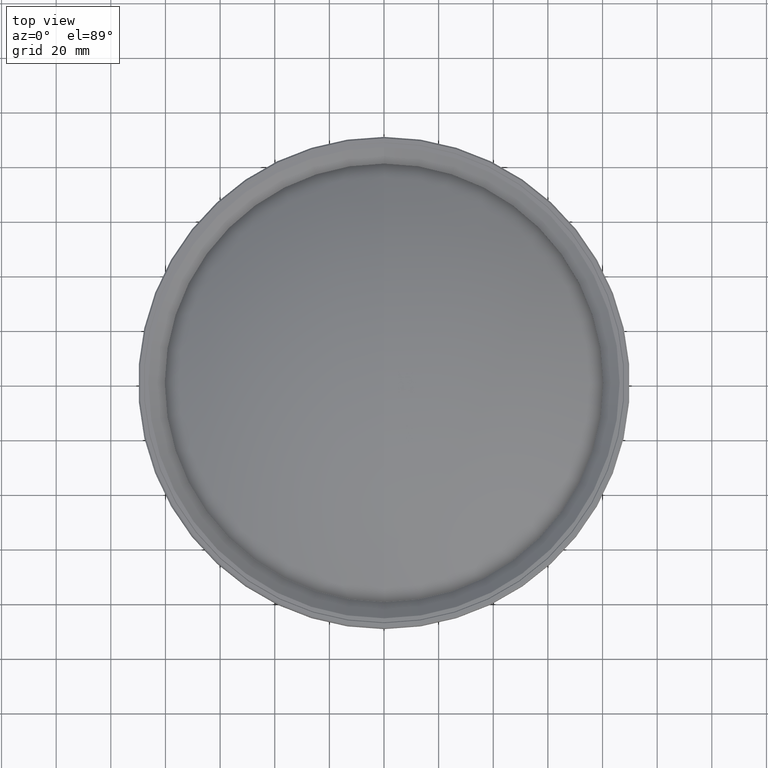
[diagram: clean part render]
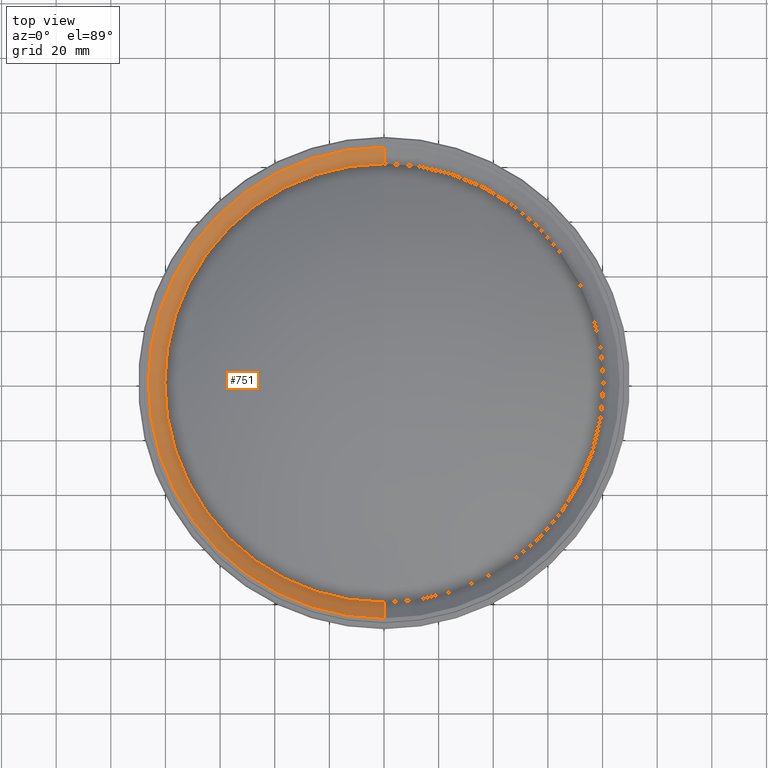
[diagram: same view with one face highlighted and labeled with its STEP entity id]
A machine part, top view. The second image highlights one B-rep face of the part: STEP entity #751.
In plain terms, the highlighted conical surface has half-angle 55 deg.
Its self-contained STEP definition (entity closure, byte-faithful):
#17 = LINE ( 'NONE', #598, #781 ) ;
#68 = ORIENTED_EDGE ( 'NONE', *, *, #882, .F. ) ;
#88 = DIRECTION ( 'NONE',  ( 0.000000000000000000, 1.000000000000000000, 0.000000000000000000 ) ) ;
#121 = ORIENTED_EDGE ( 'NONE', *, *, #797, .T. ) ;
#146 = VERTEX_POINT ( 'NONE', #1060 ) ;
#147 = VERTEX_POINT ( 'NONE', #470 ) ;
#195 = CARTESIAN_POINT ( 'NONE',  ( 0.000000000000000000, -1.122797425597999966E-14, 71.06338187298000264 ) ) ;
#227 = DIRECTION ( 'NONE',  ( 0.000000000000000000, 0.8191520442890162235, -0.5735764363510111874 ) ) ;
#289 = CARTESIAN_POINT ( 'NONE',  ( 0.000000000000000000, -86.24822162831999606, 75.26338187297999127 ) ) ;
#332 = CARTESIAN_POINT ( 'NONE',  ( 0.000000000000000000, -1.122797425597999966E-14, 73.16338187297999696 ) ) ;
#358 = VERTEX_POINT ( 'NONE', #591 ) ;
#436 = DIRECTION ( 'NONE',  ( 0.000000000000000000, -0.8191520442890162235, -0.5735764363510111874 ) ) ;
#444 = DIRECTION ( 'NONE',  ( 0.000000000000000000, 0.000000000000000000, 1.000000000000000000 ) ) ;
#470 = CARTESIAN_POINT ( 'NONE',  ( 0.000000000000000000, 86.24822162831999606, 75.26338187297999127 ) ) ;
#482 = CIRCLE ( 'NONE', #620, 80.25000000000000000 ) ;
#514 = CONICAL_SURFACE ( 'NONE', #710, 83.24911081416000513, 0.9599310885966998441 ) ;
#517 = DIRECTION ( 'NONE',  ( 0.000000000000000000, 0.000000000000000000, 1.000000000000000000 ) ) ;
#539 = DIRECTION ( 'NONE',  ( 0.000000000000000000, 0.000000000000000000, 1.000000000000000000 ) ) ;
#569 = ORIENTED_EDGE ( 'NONE', *, *, #937, .T. ) ;
#591 = CARTESIAN_POINT ( 'NONE',  ( 0.000000000000000000, -80.25000000000000000, 71.06338187298000264 ) ) ;
#598 = CARTESIAN_POINT ( 'NONE',  ( 0.000000000000000000, 86.24822162831999606, 75.26338187297999127 ) ) ;
#620 = AXIS2_PLACEMENT_3D ( 'NONE', #195, #517, #943 ) ;
#668 = EDGE_LOOP ( 'NONE', ( #121, #569, #1092, #68 ) ) ;
#710 = AXIS2_PLACEMENT_3D ( 'NONE', #332, #539, #88 ) ;
#751 = ADVANCED_FACE ( 'NONE', ( #1105 ), #514, .F. ) ;
#772 = CARTESIAN_POINT ( 'NONE',  ( 0.000000000000000000, -86.24822162831999606, 75.26338187297999127 ) ) ;
#781 = VECTOR ( 'NONE', #436, 1000.000000000000114 ) ;
#797 = EDGE_CURVE ( 'NONE', #147, #886, #875, .T. ) ;
#821 = AXIS2_PLACEMENT_3D ( 'NONE', #881, #444, #956 ) ;
#875 = CIRCLE ( 'NONE', #821, 86.24822162831999606 ) ;
#881 = CARTESIAN_POINT ( 'NONE',  ( 0.000000000000000000, -1.122797425597999966E-14, 75.26338187297999127 ) ) ;
#882 = EDGE_CURVE ( 'NONE', #147, #146, #17, .T. ) ;
#886 = VERTEX_POINT ( 'NONE', #772 ) ;
#896 = LINE ( 'NONE', #289, #966 ) ;
#905 = EDGE_CURVE ( 'NONE', #146, #358, #482, .T. ) ;
#937 = EDGE_CURVE ( 'NONE', #886, #358, #896, .T. ) ;
#943 = DIRECTION ( 'NONE',  ( 0.000000000000000000, 1.000000000000000000, 0.000000000000000000 ) ) ;
#956 = DIRECTION ( 'NONE',  ( 0.000000000000000000, 1.000000000000000000, 0.000000000000000000 ) ) ;
#966 = VECTOR ( 'NONE', #227, 1000.000000000000114 ) ;
#1060 = CARTESIAN_POINT ( 'NONE',  ( 0.000000000000000000, 80.25000000000000000, 71.06338187298000264 ) ) ;
#1092 = ORIENTED_EDGE ( 'NONE', *, *, #905, .F. ) ;
#1105 = FACE_OUTER_BOUND ( 'NONE', #668, .T. ) ;